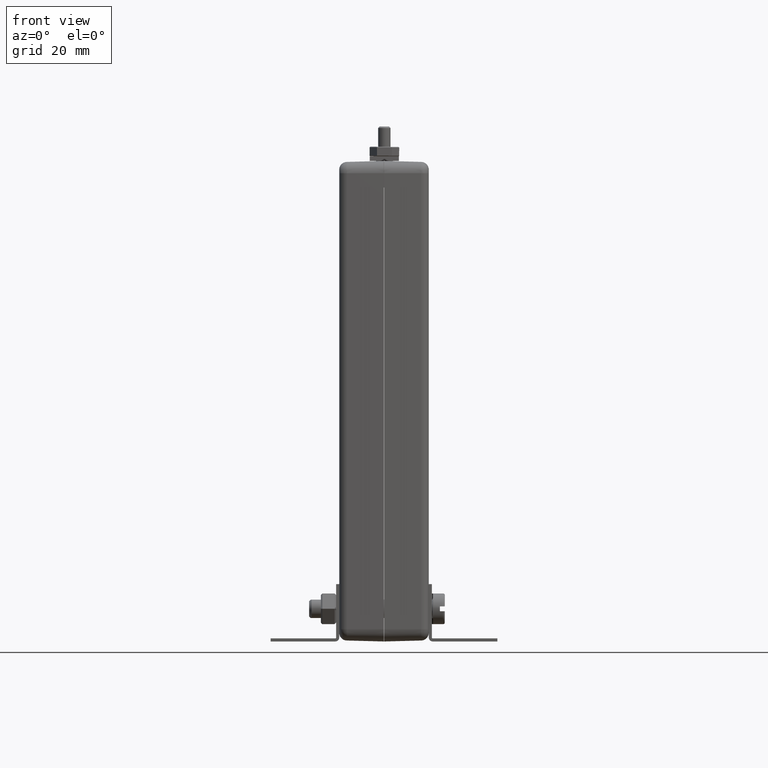
[diagram: clean part render]
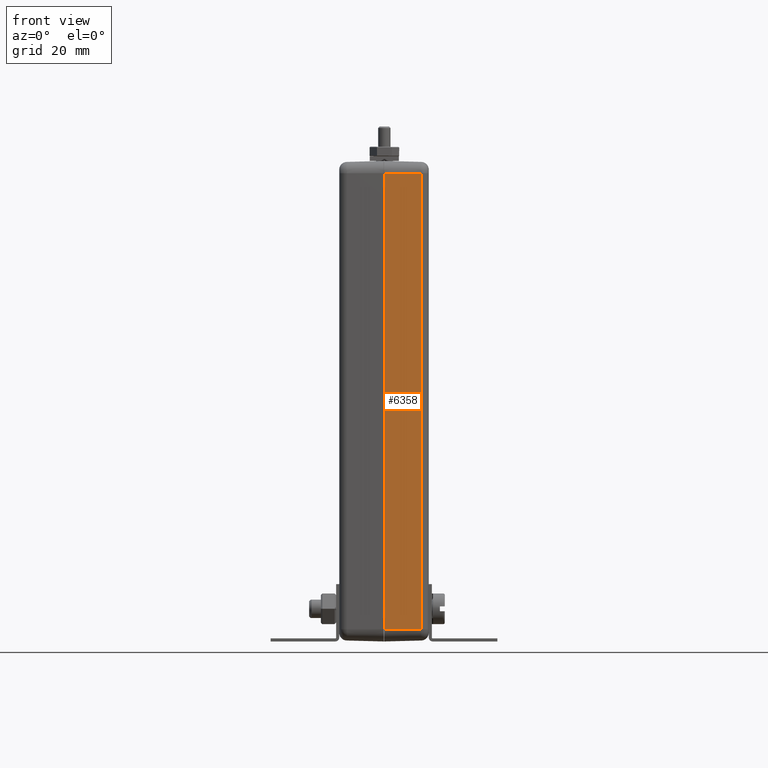
[diagram: same view with one face highlighted and labeled with its STEP entity id]
A machine part, front view. The second image highlights one B-rep face of the part: STEP entity #6358.
In plain terms, the highlighted planar face has unit normal (0.0262, -0.9997, 0).
Its self-contained STEP definition (entity closure, byte-faithful):
#223 = LINE ( 'NONE', #288, #9455 ) ;
#288 = CARTESIAN_POINT ( 'NONE',  ( -19645.66929133858503, -517.4561404352228919, -2.812519685039402084 ) ) ;
#547 = VERTEX_POINT ( 'NONE', #3625 ) ;
#674 = ORIENTED_EDGE ( 'NONE', *, *, #4763, .T. ) ;
#1054 = ORIENTED_EDGE ( 'NONE', *, *, #2593, .F. ) ;
#1495 = AXIS2_PLACEMENT_3D ( 'NONE', #11431, #12316, #2970 ) ;
#2010 = ORIENTED_EDGE ( 'NONE', *, *, #12095, .T. ) ;
#2593 = EDGE_CURVE ( 'NONE', #547, #8640, #223, .T. ) ;
#2970 = DIRECTION ( 'NONE',  ( 0.9996573249755572599, 0.02617694830787320459, 0.000000000000000000 ) ) ;
#3022 = EDGE_LOOP ( 'NONE', ( #2010, #7761, #1054, #674 ) ) ;
#3302 = CARTESIAN_POINT ( 'NONE',  ( 0.6161417322834645827, -3.000051547089705117, 3.041811023622047028 ) ) ;
#3625 = CARTESIAN_POINT ( 'NONE',  ( 1.093127652393524496, -2.987561231203136991, -2.812519685039370110 ) ) ;
#3780 = CARTESIAN_POINT ( 'NONE',  ( 0.6161417322833410148, -3.000051547089704229, 3.041811023622050136 ) ) ;
#4458 = DIRECTION ( 'NONE',  ( -0.9996573249763403002, -0.02617694827796848006, -1.602875796002996125E-18 ) ) ;
#4763 = EDGE_CURVE ( 'NONE', #547, #4881, #11103, .T. ) ;
#4881 = VERTEX_POINT ( 'NONE', #8374 ) ;
#5122 = VERTEX_POINT ( 'NONE', #3780 ) ;
#5582 = CARTESIAN_POINT ( 'NONE',  ( 0.6161417322849577216, -3.000051547089610526, -2.812519685039370110 ) ) ;
#6081 = LINE ( 'NONE', #6146, #9223 ) ;
#6146 = CARTESIAN_POINT ( 'NONE',  ( 0.6181102362204724532, -2.999999999999999112, 3.041811023622052801 ) ) ;
#6358 = ADVANCED_FACE ( 'NONE', ( #7334 ), #13328, .T. ) ;
#7334 = FACE_OUTER_BOUND ( 'NONE', #3022, .T. ) ;
#7478 = DIRECTION ( 'NONE',  ( -0.000000000000000000, 0.000000000000000000, -1.000000000000000000 ) ) ;
#7761 = ORIENTED_EDGE ( 'NONE', *, *, #11294, .T. ) ;
#8374 = CARTESIAN_POINT ( 'NONE',  ( 1.093127652392456906, -2.987561231199647338, 3.041811023622051025 ) ) ;
#8640 = VERTEX_POINT ( 'NONE', #5582 ) ;
#9119 = DIRECTION ( 'NONE',  ( -9.270035679114707659E-18, 3.540083802138463897E-16, 1.000000000000000000 ) ) ;
#9223 = VECTOR ( 'NONE', #10244, 39.37007874015748854 ) ;
#9455 = VECTOR ( 'NONE', #4458, 39.37007874015748854 ) ;
#9469 = VECTOR ( 'NONE', #7478, 39.37007874015748143 ) ;
#10013 = CARTESIAN_POINT ( 'NONE',  ( 1.093127652392507976, -2.987561231196121714, 0.1146456692913401659 ) ) ;
#10244 = DIRECTION ( 'NONE',  ( -0.9996573249755572599, -0.02617694830787320459, -0.000000000000000000 ) ) ;
#11103 = LINE ( 'NONE', #10013, #11134 ) ;
#11134 = VECTOR ( 'NONE', #9119, 39.37007874015748143 ) ;
#11294 = EDGE_CURVE ( 'NONE', #5122, #8640, #11503, .T. ) ;
#11431 = CARTESIAN_POINT ( 'NONE',  ( 0.6181102362204724532, -3.000000000000000444, 0.1146456692913401659 ) ) ;
#11503 = LINE ( 'NONE', #3302, #9469 ) ;
#12095 = EDGE_CURVE ( 'NONE', #4881, #5122, #6081, .T. ) ;
#12316 = DIRECTION ( 'NONE',  ( 0.02617694830787320806, -0.9996573249755573709, 3.541297316282880873E-16 ) ) ;
#13328 = PLANE ( 'NONE',  #1495 ) ;